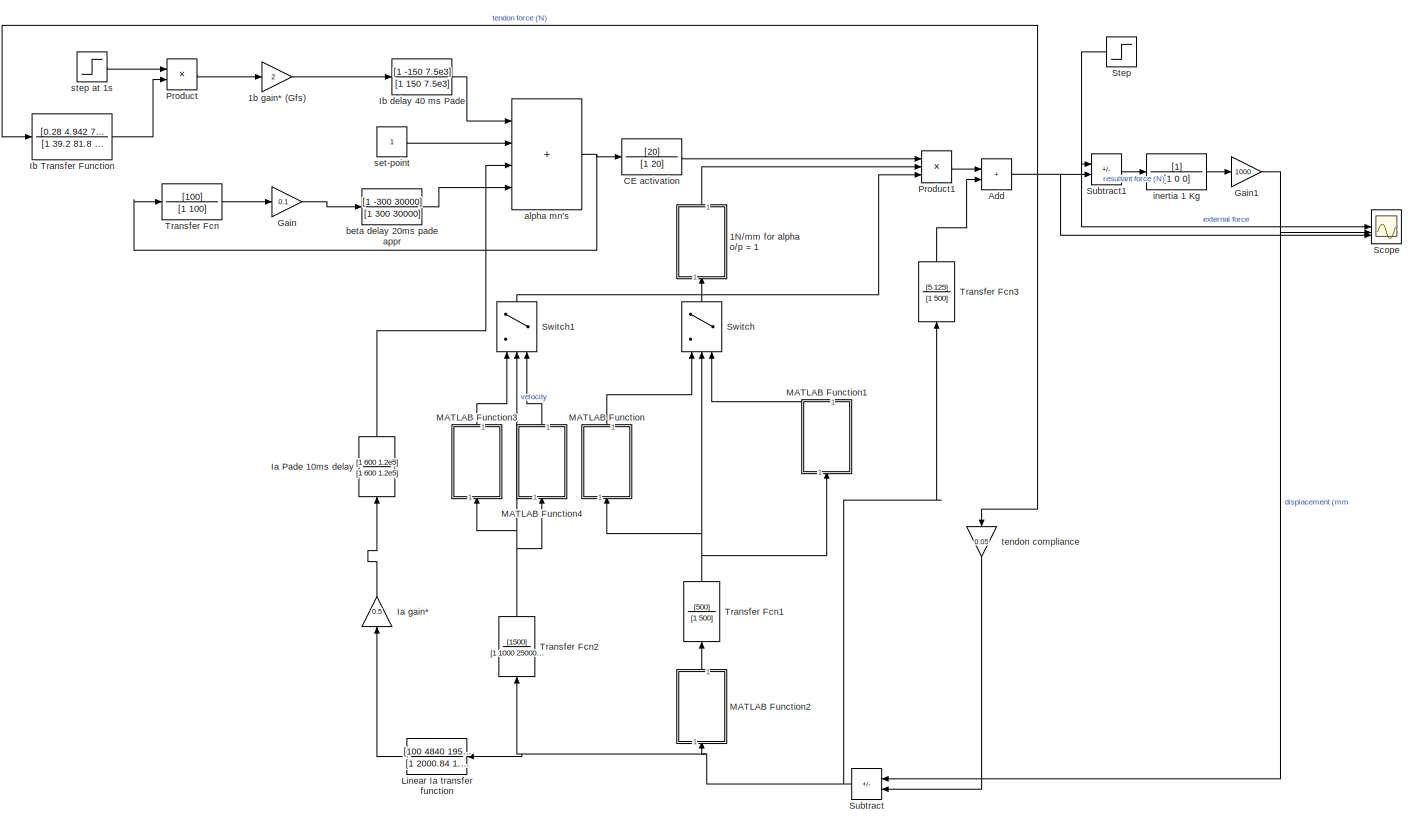
[diagram: root canvas - part 1/2, most of the canvas]
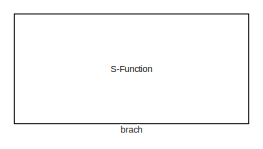
[diagram: root canvas - part 2/2, top right region]
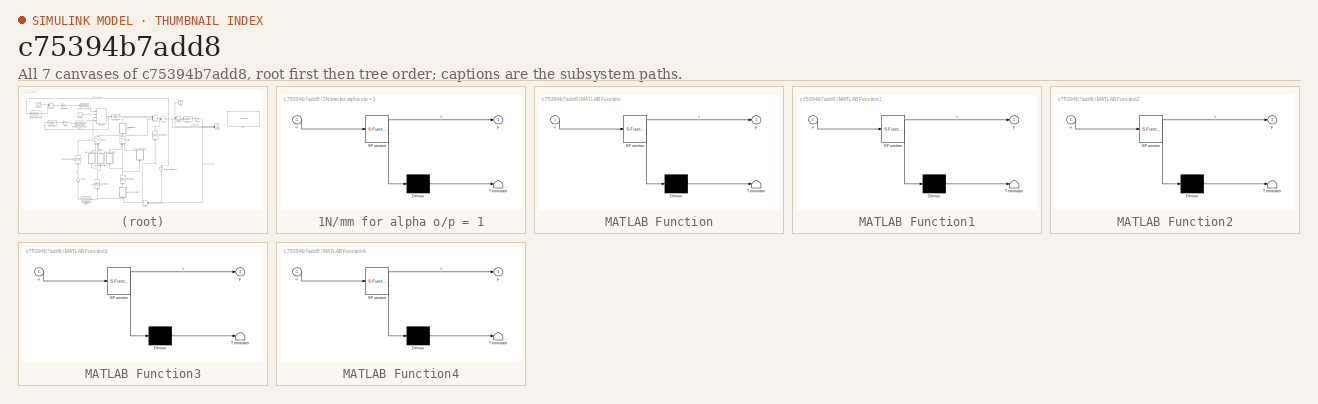
[diagram: thumbnail index - all 7 canvases of the model, root first then tree order]
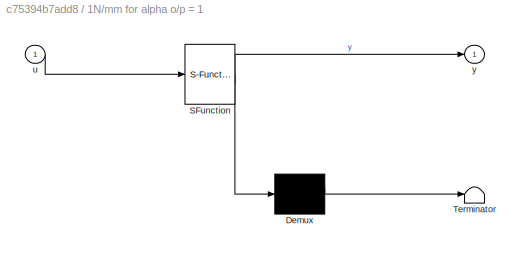
MODEL slx_c75394b7add8
KIND model
CONFIG AbsTol = auto
CONFIG EnableMultiTasking = off
CONFIG FixedStep = auto
CONFIG MaxStep = 0.2
CONFIG MinStep = auto
CONFIG RelTol = 1e-3
CONFIG SampleTimeConstraint = Unconstrained
CONFIG SolverName = VariableStepAuto
CONFIG StartTime = 0.0
CONFIG StopTime = 10.0
BLOCK [SubSystem] 1N//mm for alpha o//p = 1
  ErrorFcn = Stateflow.Translate.translate
  NameLocation = right
  PermitHierarchicalResolution = ExplicitOnly
  SFBlockType = MATLAB Function
  TreatAsAtomicUnit = on
BLOCK [Demux] 1N//mm for alpha o//p = 1/ Demux 
  Outputs = 1
BLOCK [S-Function] 1N//mm for alpha o//p = 1/ SFunction 
  EnableBusSupport = on
  FunctionName = sf_sfun
  PortCounts = [1 2]
  SFcnIsStateOwnerBlock = off
  SFunctionDeploymentMode = off
  Tag = Stateflow S-Function 4
BLOCK [Terminator] 1N//mm for alpha o//p = 1/ Terminator 
BLOCK [Inport] 1N//mm for alpha o//p = 1/u
BLOCK [Outport] 1N//mm for alpha o//p = 1/y
BLOCK [Gain] 1b gain* (Gfs)
  Gain = 2
BLOCK [Sum] Add
  IconShape = rectangular
BLOCK [TransferFcn] CE activation
  Denominator = [1 20]
  Numerator = [20]
BLOCK [Gain] Gain
  Gain = 0.1
BLOCK [Gain] Gain1
  Gain = 1000
BLOCK [TransferFcn] Ia Pade 10ms delay
  Denominator = [1 600 1.2e5]
  NameLocation = right
  Numerator = [1 600 1.2e5]
BLOCK [Gain] Ia gain*
  Gain = 0.5
  NameLocation = right
BLOCK [TransferFcn] Ib Transfer Function
  Denominator = [1 39.2 81.8 14.8]
  Numerator = [0.28 4.942 7.455 1.008]
BLOCK [TransferFcn] Ib delay 40 ms Pade
  Denominator = [1 150 7.5e3]
  Numerator = [1 -150 7.5e3]
BLOCK [TransferFcn] Linear Ia transfer function
  Denominator = [1 2000.84 1.00168e16 840064 32000]
  Numerator = [100 4840 19520 7040]
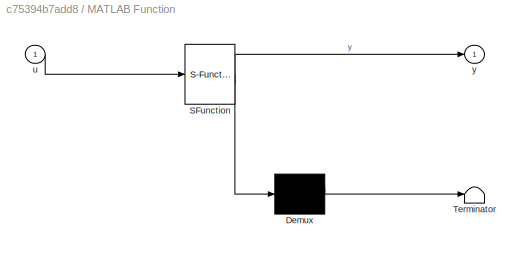
BLOCK [SubSystem] MATLAB Function
  ErrorFcn = Stateflow.Translate.translate
  NameLocation = right
  PermitHierarchicalResolution = ExplicitOnly
  SFBlockType = MATLAB Function
  TreatAsAtomicUnit = on
BLOCK [Demux] MATLAB Function/ Demux 
  Outputs = 1
BLOCK [S-Function] MATLAB Function/ SFunction 
  EnableBusSupport = on
  FunctionName = sf_sfun
  PortCounts = [1 2]
  SFcnIsStateOwnerBlock = off
  SFunctionDeploymentMode = off
  Tag = Stateflow S-Function 2
BLOCK [Terminator] MATLAB Function/ Terminator 
BLOCK [Inport] MATLAB Function/u
BLOCK [Outport] MATLAB Function/y
BLOCK [SubSystem] MATLAB Function1
  ErrorFcn = Stateflow.Translate.translate
  NameLocation = right
  PermitHierarchicalResolution = ExplicitOnly
  SFBlockType = MATLAB Function
  TreatAsAtomicUnit = on
BLOCK [Demux] MATLAB Function1/ Demux 
  Outputs = 1
BLOCK [S-Function] MATLAB Function1/ SFunction 
  EnableBusSupport = on
  FunctionName = sf_sfun
  PortCounts = [1 2]
  SFcnIsStateOwnerBlock = off
  SFunctionDeploymentMode = off
  Tag = Stateflow S-Function 1
BLOCK [Terminator] MATLAB Function1/ Terminator 
BLOCK [Inport] MATLAB Function1/u
BLOCK [Outport] MATLAB Function1/y
BLOCK [SubSystem] MATLAB Function2
  ErrorFcn = Stateflow.Translate.translate
  NameLocation = right
  PermitHierarchicalResolution = ExplicitOnly
  SFBlockType = MATLAB Function
  TreatAsAtomicUnit = on
BLOCK [Demux] MATLAB Function2/ Demux 
  Outputs = 1
BLOCK [S-Function] MATLAB Function2/ SFunction 
  EnableBusSupport = on
  FunctionName = sf_sfun
  PortCounts = [1 2]
  SFcnIsStateOwnerBlock = off
  SFunctionDeploymentMode = off
  Tag = Stateflow S-Function 3
BLOCK [Terminator] MATLAB Function2/ Terminator 
BLOCK [Inport] MATLAB Function2/u
BLOCK [Outport] MATLAB Function2/y
BLOCK [SubSystem] MATLAB Function3
  ErrorFcn = Stateflow.Translate.translate
  NameLocation = right
  PermitHierarchicalResolution = ExplicitOnly
  SFBlockType = MATLAB Function
  TreatAsAtomicUnit = on
BLOCK [Demux] MATLAB Function3/ Demux 
  Outputs = 1
BLOCK [S-Function] MATLAB Function3/ SFunction 
  EnableBusSupport = on
  FunctionName = sf_sfun
  PortCounts = [1 2]
  SFcnIsStateOwnerBlock = off
  SFunctionDeploymentMode = off
  Tag = Stateflow S-Function 5
BLOCK [Terminator] MATLAB Function3/ Terminator 
BLOCK [Inport] MATLAB Function3/u
BLOCK [Outport] MATLAB Function3/y
BLOCK [SubSystem] MATLAB Function4
  ErrorFcn = Stateflow.Translate.translate
  NameLocation = right
  PermitHierarchicalResolution = ExplicitOnly
  SFBlockType = MATLAB Function
  TreatAsAtomicUnit = on
BLOCK [Demux] MATLAB Function4/ Demux 
  Outputs = 1
BLOCK [S-Function] MATLAB Function4/ SFunction 
  EnableBusSupport = on
  FunctionName = sf_sfun
  PortCounts = [1 2]
  SFcnIsStateOwnerBlock = off
  SFunctionDeploymentMode = off
  Tag = Stateflow S-Function 6
BLOCK [Terminator] MATLAB Function4/ Terminator 
BLOCK [Inport] MATLAB Function4/u
BLOCK [Outport] MATLAB Function4/y
BLOCK [Product] Product
BLOCK [Product] Product1
  Inputs = 3
BLOCK [Scope] Scope
  Floating = off
  NumInputPorts = 3
  ScopeSpecificationString = Simulink.scopes.TimeScopeBlockCfg('CurrentConfiguration', extmgr.ConfigurationSet(extmgr.Configuration('Core','General UI',true),extmgr.Configuration('Core','Source UI',true),extmgr.Configuration('Sources','WiredSimulink',true),extmgr.Configuration('Visuals','Time Domain',true,'SerializedDisplays',{struct('MinYLimReal','-3.75','MaxYLimReal','33.75','YLabelReal','','MinYLimMag','0.00000','MaxYLimMa...<+2785ch>
BLOCK [Step] Step
  After = 0
  Before = 30
  SampleTime = 0
BLOCK [Sum] Subtract
  IconShape = rectangular
  Inputs = +-
BLOCK [Sum] Subtract1
  IconShape = rectangular
  Inputs = +-
BLOCK [Switch] Switch
  Criteria = u2 > Threshold
  InputSameDT = off
  NameLocation = left
  SaturateOnIntegerOverflow = off
BLOCK [Switch] Switch1
  Criteria = u2 > Threshold
  InputSameDT = off
  NameLocation = right
  SaturateOnIntegerOverflow = off
BLOCK [TransferFcn] Transfer Fcn
  Denominator = [1 100]
  Numerator = [100]
BLOCK [TransferFcn] Transfer Fcn1
  Denominator = [1 500]
  NameLocation = right
  Numerator = [500]
BLOCK [TransferFcn] Transfer Fcn2
  Denominator = [1 1000 250000]
  NameLocation = right
  Numerator = [1500]
BLOCK [TransferFcn] Transfer Fcn3
  Denominator = [1 500]
  NameLocation = right
  Numerator = [5 125]
BLOCK [Sum] alpha mn's
  IconShape = rectangular
  Inputs = ++++
BLOCK [TransferFcn] beta delay 20ms pade appr
  Denominator = [1 300 30000]
  Numerator = [1 -300 30000]
BLOCK [S-Function] brach
  EnableBusSupport = off
  FunctionName = Virtual_Muscle_SFunction
  Parameters = TOFMUSFIB SARCLEN SPTEN VISC C1 K1 LR1 C2 K2 LR2 CT KT LRT RRANK V05 F05 FMIN FMAX FLOMEGA FLBETA FLRHO VMAX CV0 CV1 AV0 AV1 AV2 BV AF NF0 NF1 TL TF1 TF2 TF3 TF4 AS1 AS2 TS CY VY TY CH0 CH1 CH2 CH3 RTYPE ADDPORTS MMASS FASCL0 TENDL0T LPATH UR NUMOFUNITS FPCSA UPCSA APPORTMTD GEOPCSA
  SFcnIsStateOwnerBlock = off
  SFunctionDeploymentMode = off
BLOCK [TransferFcn] inertia 1 Kg
  Denominator = [1 0 0]
BLOCK [Constant] set-point
BLOCK [Step] step at 1s
  SampleTime = 0
BLOCK [Gain] tendon compliance
  Gain = 0.05
  NameLocation = left
LINE 1N//mm for alpha o//p = 1:1 -> Product1:2
LINE 1b gain* (Gfs):1 -> Ib delay 40 ms Pade:1
NET Add:1 -> Ib Transfer Function:1, Scope:3, Subtract1:2, tendon compliance:1
LINE CE activation:1 -> Product1:1
NET Gain1:1 -> Scope:2, Subtract:1
LINE Gain:1 -> beta delay 20ms pade appr:1
LINE Ia Pade 10ms delay:1 -> alpha mn's:3
LINE Ia gain*:1 -> Ia Pade 10ms delay:1
LINE Ib Transfer Function:1 -> Product:2
LINE Ib delay 40 ms Pade:1 -> alpha mn's:1
LINE Linear Ia transfer function:1 -> Ia gain*:1
LINE MATLAB Function1:1 -> Switch:3
LINE MATLAB Function2:1 -> Transfer Fcn1:1
LINE MATLAB Function3:1 -> Switch1:1
LINE MATLAB Function4:1 -> Switch1:3
LINE MATLAB Function:1 -> Switch:1
LINE Product1:1 -> Add:1
LINE Product:1 -> 1b gain* (Gfs):1
NET Step:1 -> Scope:1, Subtract1:1
LINE Subtract1:1 -> inertia 1 Kg:1
NET Subtract:1 -> Linear Ia transfer function:1, MATLAB Function2:1, Transfer Fcn2:1, Transfer Fcn3:1
LINE Switch1:1 -> Product1:3
LINE Switch:1 -> 1N//mm for alpha o//p = 1:1
NET Transfer Fcn1:1 -> MATLAB Function1:1, MATLAB Function:1, Switch:2
NET Transfer Fcn2:1 -> MATLAB Function3:1, MATLAB Function4:1, Switch1:2
LINE Transfer Fcn3:1 -> Add:2
LINE Transfer Fcn:1 -> Gain:1
NET alpha mn's:1 -> CE activation:1, Transfer Fcn:1
LINE beta delay 20ms pade appr:1 -> alpha mn's:4
LINE inertia 1 Kg:1 -> Gain1:1
LINE set-point:1 -> alpha mn's:2
LINE step at 1s:1 -> Product:1
LINE tendon compliance:1 -> Subtract:2
note: NET lines group one-source signal fan-out (src -> all destinations, sorted); 1:1 wires keep LINE
CHART MATLAB Function states=1 transitions=1
  STATE_LABEL 'eML_blk_kernel()'
  STATE_LABEL 'SCRIPT:\nfunction y = switchFun1(u)\n\ny = 1-exp(-0.15*u);\n'
CHART MATLAB Function2 states=1 transitions=1
  STATE_LABEL 'eML_blk_kernel()'
  STATE_LABEL 'SCRIPT:\nfunction y = offset(u)\n\ny = u-8;\n'
CHART 1N//mm for alpha o//p = 1 states=1 transitions=1
  STATE_LABEL 'eML_blk_kernel()'
  STATE_LABEL 'SCRIPT:\nfunction y = parallelStiffness(u)\n\ny = (10*u)+7;\n'
CHART MATLAB Function3 states=1 transitions=1
  STATE_LABEL 'eML_blk_kernel()'
  STATE_LABEL 'SCRIPT:\nfunction y = velocity1(u)\n\ny = 1+(0.5*(1-exp(-1.5*u)));\n'
CHART MATLAB Function4 states=1 transitions=1
  STATE_LABEL 'eML_blk_kernel()'
  STATE_LABEL 'SCRIPT:\nfunction y = velocity2(u)\n\ny = 1/(1-u);\n'
CHART MATLAB Function1 states=1 transitions=1
  STATE_LABEL 'eML_blk_kernel()'
  STATE_LABEL 'SCRIPT:\nfunction y = switchFun2(u)\n\ny = -1+exp(0.15*u);\n'
CHART  states=0 transitions=0
CHART  states=0 transitions=0
CHART  states=0 transitions=0
CHART  states=0 transitions=0
CHART  states=0 transitions=0
CHART  states=0 transitions=0
